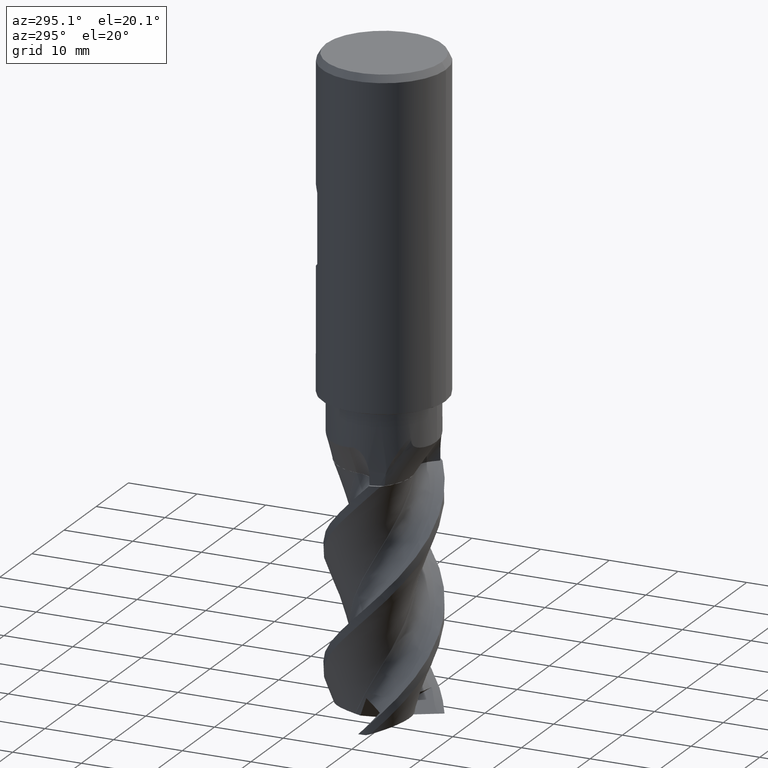
[diagram: clean part render]
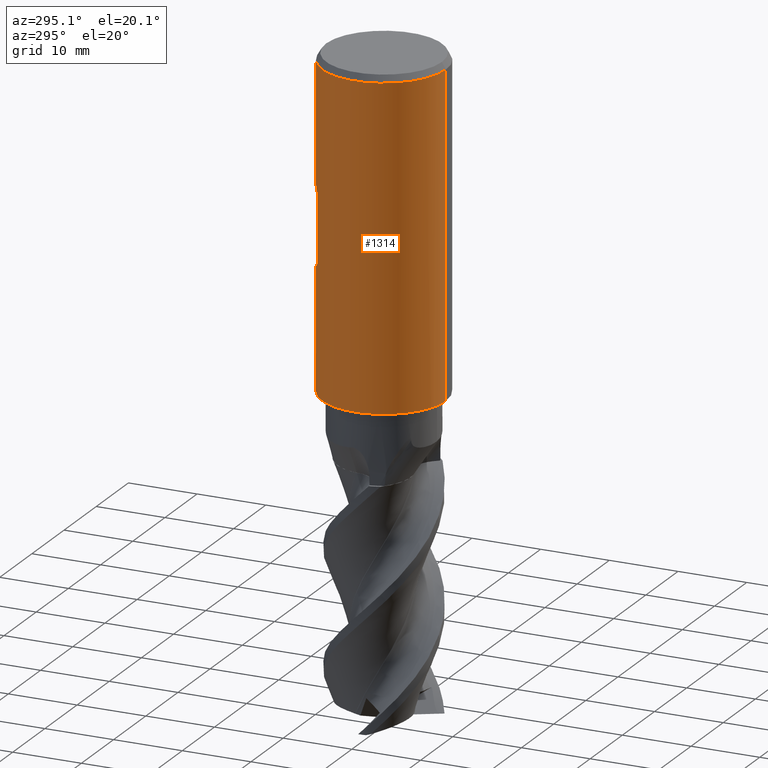
[diagram: same view with one face highlighted and labeled with its STEP entity id]
A machine part, auxiliary view. The second image highlights one B-rep face of the part: STEP entity #1314.
In plain terms, the highlighted cylindrical surface (partial cylindrical patch) has radius 9 mm, axis along (-0, -0, 1).
Its self-contained STEP definition (entity closure, byte-faithful):
#508=EDGE_CURVE('',#1026,#636,#1442,.T.);
#522=VERTEX_POINT('',#1458);
#598=EDGE_CURVE('',#756,#932,#1542,.T.);
#624=VERTEX_POINT('',#1571);
#636=VERTEX_POINT('',#1583);
#646=EDGE_CURVE('',#1152,#932,#1594,.T.);
#652=EDGE_CURVE('',#1072,#1014,#1600,.T.);
#706=VERTEX_POINT('',#1663);
#710=EDGE_CURVE('',#1216,#956,#1667,.T.);
#756=VERTEX_POINT('',#1717);
#778=EDGE_CURVE('',#1026,#1216,#1742,.T.);
#820=VERTEX_POINT('',#1785);
#852=EDGE_CURVE('',#930,#706,#1821,.T.);
#870=VERTEX_POINT('',#1840);
#884=EDGE_CURVE('',#1100,#870,#1855,.T.);
#900=EDGE_CURVE('',#756,#1014,#1871,.T.);
#908=VERTEX_POINT('',#1879);
#930=VERTEX_POINT('',#1903);
#932=VERTEX_POINT('',#1905);
#956=VERTEX_POINT('',#1930);
#960=EDGE_CURVE('',#706,#1380,#1935,.T.);
#1014=VERTEX_POINT('',#1995);
#1026=VERTEX_POINT('',#2009);
#1034=EDGE_CURVE('',#1146,#1072,#2017,.T.);
#1044=EDGE_CURVE('',#1380,#1100,#2028,.T.);
#1056=VERTEX_POINT('',#2040);
#1072=VERTEX_POINT('',#2056);
#1100=VERTEX_POINT('',#2085);
#1146=VERTEX_POINT('',#2136);
#1152=VERTEX_POINT('',#2142);
#1168=EDGE_CURVE('',#624,#1146,#2159,.T.);
#1216=VERTEX_POINT('',#2210);
#1254=EDGE_CURVE('',#1056,#908,#2253,.T.);
#1284=EDGE_CURVE('',#1152,#636,#2285,.T.);
#1314=ADVANCED_FACE('',(#2319,#2320),#2321,.T.);
#1332=EDGE_CURVE('',#820,#1056,#2341,.T.);
#1362=EDGE_CURVE('',#908,#820,#2374,.T.);
#1370=EDGE_CURVE('',#956,#522,#2383,.T.);
#1374=EDGE_CURVE('',#522,#930,#2387,.T.);
#1376=EDGE_CURVE('',#870,#624,#2389,.T.);
#1380=VERTEX_POINT('',#2393);
#1442=CIRCLE('',#2451,9.0);
#1458=CARTESIAN_POINT('',(-1.10214571844014E-015,9.0,-17.2));
#1542=B_SPLINE_CURVE_WITH_KNOTS('',3,(#3024,#3025,#3026,#3027,#3028,#3029,#3030,#3031),.UNSPECIFIED.,.F.,.F.,(4,2,2,4),(0.0,0.273563072568342,0.380967480785505,0.478814664205633),.UNSPECIFIED.);
#1571=CARTESIAN_POINT('',(-0.972752485096018,8.94727626726366,-30.7666603497188));
#1583=CARTESIAN_POINT('',(-2.87220340311306,-8.52938729400569,-47.48));
#1594=CIRCLE('',#3672,9.0);
#1600=LINE('',#3680,#3681);
#1663=CARTESIAN_POINT('',(-5.4,7.2,-29.0));
#1667=CIRCLE('',#4671,9.0);
#1717=CARTESIAN_POINT('',(-5.59669407703695,7.0481923503874,-47.48));
#1742=LINE('',#5560,#5561);
#1785=CARTESIAN_POINT('',(-2.67409065022992,8.59355800552675,-34.2242344279458));
#1821=LINE('',#5925,#5926);
#1840=CARTESIAN_POINT('',(-0.0299999583321919,8.99995,-31.5195952455543));
#1855=LINE('',#6039,#6040);
#1871=CIRCLE('',#6076,9.0);
#1879=CARTESIAN_POINT('',(-0.0299999583321114,8.99995,-32.9206537157906));
#1903=CARTESIAN_POINT('',(-5.4,7.2,-19.0));
#1905=CARTESIAN_POINT('',(-5.95056437376174,6.75209475894092,-47.48));
#1930=CARTESIAN_POINT('',(0.0,9.0,-1.0));
#1935=ELLIPSE('',#6575,12.7279220613579,9.0);
#1995=CARTESIAN_POINT('',(-1.10214571844014E-015,9.0,-47.48));
#2009=CARTESIAN_POINT('',(1.10214571844014E-015,-9.0,-47.48));
#2017=ELLIPSE('',#7197,12.7279220613579,9.0);
#2028=B_SPLINE_CURVE_WITH_KNOTS('',3,(#7226,#7227,#7228,#7229,#7230,#7231,#7232,#7233,#7234,#7235,#7236,#7237,#7238,#7239,#7240,#7241,#7242,#7243,#7244,#7245,#7246,#7247,#7248,#7249),.UNSPECIFIED.,.F.,.F.,(4,2,2,2,2,2,2,2,2,2,2,4),(6.72111535967371,7.16886729186492,7.61661922405613,8.06437115624733,8.51212308843854,8.95987502062975,9.40648566973643,9.8530963188431,10.2997069679498,10.7463176170565,11.1960107466702,11.6457038762839),.UNSPECIFIED.);
#2040=CARTESIAN_POINT('',(-0.0299999583321709,8.99995,-35.5425013611652));
#2056=CARTESIAN_POINT('',(-1.10214571844014E-015,9.0,-30.8));
#2085=CARTESIAN_POINT('',(-0.0299999583321239,8.99995,-32.4762670158147));
#2136=CARTESIAN_POINT('',(-0.982797064955306,8.94617850979485,-30.7461785097949));
#2142=CARTESIAN_POINT('',(-3.30556658769449,-8.37097542311037,-47.48));
#2159=B_SPLINE_CURVE_WITH_KNOTS('',3,(#8054,#8055,#8056,#8057,#8058,#8059,#8060,#8061,#8062,#8063,#8064,#8065,#8066,#8067,#8068,#8069,#8070,#8071,#8072,#8073,#8074,#8075,#8076,#8077,#8078,#8079,#8080),.UNSPECIFIED.,.F.,.F.,(4,2,3,2,2,2,2,2,2,2,2,2,4),(-1.085405744916,-0.542702872457999,0.0,0.542702872457997,1.08540574491599,1.62951320283213,2.17362066074827,2.71536265667879,3.25710465260932,3.79954438793423,4.34198412325914,4.88442385858405,5.42686359390896),.UNSPECIFIED.);
#2210=CARTESIAN_POINT('',(1.10214571844014E-015,-9.0,-1.0));
#2253=LINE('',#8932,#8933);
#2285=B_SPLINE_CURVE_WITH_KNOTS('',3,(#9051,#9052,#9053,#9054,#9055,#9056,#9057,#9058),.UNSPECIFIED.,.F.,.F.,(4,2,2,4),(0.0,0.273648571603157,0.381080653276081,0.478953568978043),.UNSPECIFIED.);
#2319=FACE_OUTER_BOUND('',#9222,.T.);
#2320=FACE_BOUND('',#9223,.T.);
#2321=CYLINDRICAL_SURFACE('',#9224,9.0);
#2341=B_SPLINE_CURVE_WITH_KNOTS('',3,(#9786,#9787,#9788,#9789,#9790,#9791,#9792,#9793,#9794,#9795,#9796,#9797,#9798,#9799,#9800,#9801),.UNSPECIFIED.,.F.,.F.,(4,2,2,2,2,2,2,4),(11.7740200023062,12.393951505771,13.013967552252,13.633983598733,14.253999645214,14.874015691695,15.4928840481819,16.1117524046687),.UNSPECIFIED.);
#2374=ELLIPSE('',#10337,10.0343558883857,9.0);
#2383=LINE('',#10349,#10350);
#2387=ELLIPSE('',#10355,12.7279220613579,9.0);
#2389=B_SPLINE_CURVE_WITH_KNOTS('',3,(#10358,#10359,#10360,#10361,#10362,#10363,#10364,#10365,#10366,#10367,#10368,#10369,#10370,#10371,#10372,#10373,#10374,#10375,#10376,#10377,#10378,#10379,#10380,#10381,#10382,#10383,#10384),.UNSPECIFIED.,.F.,.F.,(4,2,3,2,2,2,2,2,2,2,2,2,4),(-1.085405744916,-0.542702872457999,0.0,0.542702872457997,1.08540574491599,1.62951320283213,2.17362066074827,2.71536265667879,3.25710465260932,3.79954438793423,4.34198412325914,4.88442385858405,5.42686359390896),.UNSPECIFIED.);
#2393=CARTESIAN_POINT('',(-2.02979799746045,8.7681195298368,-30.5681195298368));
#2451=AXIS2_PLACEMENT_3D('',#10446,#10447,#10448);
#3024=CARTESIAN_POINT('',(-5.59669407703691,7.04819235038743,-47.48));
#3025=CARTESIAN_POINT('',(-5.66280986759142,6.99569238514816,-47.4455376893854));
#3026=CARTESIAN_POINT('',(-5.73685288017995,6.93518547355534,-47.4180056755605));
#3027=CARTESIAN_POINT('',(-5.8336652488943,6.85343898023005,-47.4193809766427));
#3028=CARTESIAN_POINT('',(-5.86071501051607,6.83031288234061,-47.4241825965036));
#3029=CARTESIAN_POINT('',(-5.90983351377393,6.78784398923294,-47.4451875062973));
#3030=CARTESIAN_POINT('',(-5.93132235903759,6.76905258482827,-47.459993828878));
#3031=CARTESIAN_POINT('',(-5.95056437376174,6.75209475894093,-47.48));
#3672=AXIS2_PLACEMENT_3D('',#10619,#10620,#10621);
#3680=CARTESIAN_POINT('',(-1.10214571844014E-015,9.0,-24.24));
#3681=VECTOR('',#10625,1.0);
#4671=AXIS2_PLACEMENT_3D('',#10727,#10728,#10729);
#5560=CARTESIAN_POINT('',(1.10214571844014E-015,-9.0,-24.24));
#5561=VECTOR('',#10817,1.0);
#5925=CARTESIAN_POINT('',(-5.4,7.2,-24.0));
#5926=VECTOR('',#10886,1.0);
#6039=CARTESIAN_POINT('',(-0.0299999583321114,8.99995,-32.5113557716623));
#6040=VECTOR('',#10932,1.0);
#6076=AXIS2_PLACEMENT_3D('',#10943,#10944,#10945);
#6575=AXIS2_PLACEMENT_3D('',#11019,#11020,#11021);
#7197=AXIS2_PLACEMENT_3D('',#11144,#11145,#11146);
#7226=CARTESIAN_POINT('',(-2.02573899998328,8.76905818796675,-29.6761327684681));
#7227=CARTESIAN_POINT('',(-2.05585758861474,8.76210049671451,-29.8292863196099));
#7228=CARTESIAN_POINT('',(-2.07020653574254,8.7586668448668,-29.9834494521882));
#7229=CARTESIAN_POINT('',(-2.07020653574254,8.7586668448668,-30.2819507403156));
#7230=CARTESIAN_POINT('',(-2.05585758861474,8.76210049671451,-30.4361138728939));
#7231=CARTESIAN_POINT('',(-1.99562041135181,8.776015879219,-30.7424209751776));
#7232=CARTESIAN_POINT('',(-1.94974727162203,8.78648509096056,-30.8945684809083));
#7233=CARTESIAN_POINT('',(-1.8286586346091,8.81248217441499,-31.1860895333502));
#7234=CARTESIAN_POINT('',(-1.75334716132797,8.82800085542403,-31.3257055064884));
#7235=CARTESIAN_POINT('',(-1.57948408609156,8.86075930113369,-31.5837739010011));
#7236=CARTESIAN_POINT('',(-1.48091949983175,8.87795943361991,-31.7022226038278));
#7237=CARTESIAN_POINT('',(-1.2712111113396,8.91040128827857,-31.9116168857159));
#7238=CARTESIAN_POINT('',(-1.15287103889247,8.92679820825818,-32.0098456755453));
#7239=CARTESIAN_POINT('',(-0.895034420080195,8.95632465188876,-32.183137952716));
#7240=CARTESIAN_POINT('',(-0.755541498545393,8.96941761352922,-32.2582130608226));
#7241=CARTESIAN_POINT('',(-0.464354476379575,8.98919741687783,-32.3788870471889));
#7242=CARTESIAN_POINT('',(-0.312412241771743,8.9958754356403,-32.4245842985495));
#7243=CARTESIAN_POINT('',(-0.00667433813825385,9.00129611309261,-32.4845577077242));
#7244=CARTESIAN_POINT('',(0.147124132522398,9.00002871278482,-32.4988204910877));
#7245=CARTESIAN_POINT('',(0.445730523630594,8.99020542722627,-32.4988204910877));
#7246=CARTESIAN_POINT('',(0.600297659886331,8.98127715240044,-32.4843636868261));
#7247=CARTESIAN_POINT('',(0.90708999517611,8.95549464347648,-32.4238646193837));
#7248=CARTESIAN_POINT('',(1.05931937675239,8.93865007325276,-32.3778394492554));
#7249=CARTESIAN_POINT('',(1.20504183583085,8.91896149637935,-32.3171936404792));
#8054=CARTESIAN_POINT('',(1.33036832267219,8.90113027238847,-29.1074250922449));
#8055=CARTESIAN_POINT('',(1.45749188786099,8.88213030732594,-29.2347190705811));
#8056=CARTESIAN_POINT('',(1.56790332138236,8.86268816792471,-29.3959688561976));
#8057=CARTESIAN_POINT('',(1.71456548275565,8.83548683826903,-29.7498311856967));
#8058=CARTESIAN_POINT('',(1.75079223667223,8.8280647111362,-29.9424794942448));
#8059=CARTESIAN_POINT('',(1.75079223667223,8.8280647111362,-30.1233804517308));
#8060=CARTESIAN_POINT('',(1.75079223667223,8.8280647111362,-30.3042814092168));
#8061=CARTESIAN_POINT('',(1.71456548275565,8.83548683826903,-30.4969297177649));
#8062=CARTESIAN_POINT('',(1.56790332138236,8.86268816792471,-30.850792047264));
#8063=CARTESIAN_POINT('',(1.45749188786099,8.88213030732594,-31.0120418328805));
#8064=CARTESIAN_POINT('',(1.20291574520041,8.92017941182611,-31.2669592428873));
#8065=CARTESIAN_POINT('',(1.04149337061168,8.94130655069399,-31.3776769707826));
#8066=CARTESIAN_POINT('',(0.687210131399165,8.97548959711479,-31.5247701109365));
#8067=CARTESIAN_POINT('',(0.494310444213559,8.98824520995452,-31.5611216454099));
#8068=CARTESIAN_POINT('',(0.132579651966037,9.00083507306786,-31.5611216454099));
#8069=CARTESIAN_POINT('',(-0.0599554084838443,9.00154270808028,-31.5250524131921));
#8070=CARTESIAN_POINT('',(-0.414040294972534,8.99221532277878,-31.3784327540332));
#8071=CARTESIAN_POINT('',(-0.575601847251623,8.98248579558085,-31.2678913710281));
#8072=CARTESIAN_POINT('',(-0.830863293176513,8.96248162807063,-31.0128482648791));
#8073=CARTESIAN_POINT('',(-0.941583007185728,8.95091544022499,-30.8512366752551));
#8074=CARTESIAN_POINT('',(-1.08850170901715,8.93423918714795,-30.4969190855959));
#8075=CARTESIAN_POINT('',(-1.124690150686,8.92944970672605,-30.3041936968391));
#8076=CARTESIAN_POINT('',(-1.124690150686,8.92944970672605,-29.9425672066225));
#8077=CARTESIAN_POINT('',(-1.08850170901715,8.93423918714795,-29.7498418178657));
#8078=CARTESIAN_POINT('',(-0.941583007185728,8.95091544022499,-29.3955242282065));
#8079=CARTESIAN_POINT('',(-0.830863293176513,8.96248162807063,-29.2339126385825));
#8080=CARTESIAN_POINT('',(-0.703150431785816,8.97249014879813,-29.1063090173374));
#8932=CARTESIAN_POINT('',(-0.0299999583321114,8.99995,-32.5113557716623));
#8933=VECTOR('',#11383,1.0);
#9051=CARTESIAN_POINT('',(-3.30564266308556,-8.37094538173488,-47.4800333912525));
#9052=CARTESIAN_POINT('',(-3.22709662544276,-8.40196280225407,-47.4455539334471));
#9053=CARTESIAN_POINT('',(-3.13764451392767,-8.43584438982659,-47.4180048519123));
#9054=CARTESIAN_POINT('',(-3.01840859578593,-8.47882576148057,-47.4193813179677));
#9055=CARTESIAN_POINT('',(-2.98484751722948,-8.49069139234544,-47.4241855520182));
#9056=CARTESIAN_POINT('',(-2.92349519671296,-8.51199943937715,-47.4452023144452));
#9057=CARTESIAN_POINT('',(-2.89647232007666,-8.5212150576443,-47.460016838941));
#9058=CARTESIAN_POINT('',(-2.87216284209744,-8.52940095249806,-47.4800333912525));
#9222=EDGE_LOOP('',(#11447,#11448,#11449,#11450,#11451,#11452,#11453,#11454,#11455,#11456,#11457,#11458,#11459,#11460,#11461,#11462,#11463));
#9223=EDGE_LOOP('',(#11464,#11465,#11466));
#9224=AXIS2_PLACEMENT_3D('',#11467,#11468,#11469);
#9786=CARTESIAN_POINT('',(-2.75801710243225,8.56699140087646,-34.1054896787227));
#9787=CARTESIAN_POINT('',(-2.63886488611276,8.60535070747131,-34.2823201867123));
#9788=CARTESIAN_POINT('',(-2.50399058736118,8.6459315593051,-34.4444994923181));
#9789=CARTESIAN_POINT('',(-2.21704939640103,8.72392110190447,-34.7315750503543));
#9790=CARTESIAN_POINT('',(-2.054862500917,8.76414625270379,-34.8665874707118));
#9791=CARTESIAN_POINT('',(-1.70105557084421,8.8396340071784,-35.1051893888033));
#9792=CARTESIAN_POINT('',(-1.50943400096102,8.87483172361297,-35.208797133909));
#9793=CARTESIAN_POINT('',(-1.10862905213282,8.93375457204859,-35.3757203182142));
#9794=CARTESIAN_POINT('',(-0.89909407932118,8.95748531044778,-35.439167436383));
#9795=CARTESIAN_POINT('',(-0.476478644662202,8.98987660380115,-35.5226250040961));
#9796=CARTESIAN_POINT('',(-0.263391934158759,8.99851865647943,-35.5426109895817));
#9797=CARTESIAN_POINT('',(0.149561331249368,9.00112141603858,-35.5426109895817));
#9798=CARTESIAN_POINT('',(0.36236142804058,8.99519002939681,-35.5226975878218));
#9799=CARTESIAN_POINT('',(0.784583080133951,8.9682316461963,-35.4394366659793));
#9800=CARTESIAN_POINT('',(0.994010392763709,8.94722330733776,-35.3761123034148));
#9801=CARTESIAN_POINT('',(1.1943649543029,8.92039754472484,-35.2927659152924));
#10337=AXIS2_PLACEMENT_3D('',#11532,#11533,#11534);
#10349=CARTESIAN_POINT('',(-1.10214571844014E-015,9.0,-24.24));
#10350=VECTOR('',#11544,1.0);
#10355=AXIS2_PLACEMENT_3D('',#11545,#11546,#11547);
#10358=CARTESIAN_POINT('',(1.33036832267219,8.90113027238847,-29.1074250922449));
#10359=CARTESIAN_POINT('',(1.45749188786099,8.88213030732594,-29.2347190705811));
#10360=CARTESIAN_POINT('',(1.56790332138236,8.86268816792471,-29.3959688561976));
#10361=CARTESIAN_POINT('',(1.71456548275565,8.83548683826903,-29.7498311856967));
#10362=CARTESIAN_POINT('',(1.75079223667223,8.8280647111362,-29.9424794942448));
#10363=CARTESIAN_POINT('',(1.75079223667223,8.8280647111362,-30.1233804517308));
#10364=CARTESIAN_POINT('',(1.75079223667223,8.8280647111362,-30.3042814092168));
#10365=CARTESIAN_POINT('',(1.71456548275565,8.83548683826903,-30.4969297177649));
#10366=CARTESIAN_POINT('',(1.56790332138236,8.86268816792471,-30.850792047264));
#10367=CARTESIAN_POINT('',(1.45749188786099,8.88213030732594,-31.0120418328805));
#10368=CARTESIAN_POINT('',(1.20291574520041,8.92017941182611,-31.2669592428873));
#10369=CARTESIAN_POINT('',(1.04149337061168,8.94130655069399,-31.3776769707826));
#10370=CARTESIAN_POINT('',(0.687210131399165,8.97548959711479,-31.5247701109365));
#10371=CARTESIAN_POINT('',(0.494310444213559,8.98824520995452,-31.5611216454099));
#10372=CARTESIAN_POINT('',(0.132579651966037,9.00083507306786,-31.5611216454099));
#10373=CARTESIAN_POINT('',(-0.0599554084838443,9.00154270808028,-31.5250524131921));
#10374=CARTESIAN_POINT('',(-0.414040294972534,8.99221532277878,-31.3784327540332));
#10375=CARTESIAN_POINT('',(-0.575601847251623,8.98248579558085,-31.2678913710281));
#10376=CARTESIAN_POINT('',(-0.830863293176513,8.96248162807063,-31.0128482648791));
#10377=CARTESIAN_POINT('',(-0.941583007185728,8.95091544022499,-30.8512366752551));
#10378=CARTESIAN_POINT('',(-1.08850170901715,8.93423918714795,-30.4969190855959));
#10379=CARTESIAN_POINT('',(-1.124690150686,8.92944970672605,-30.3041936968391));
#10380=CARTESIAN_POINT('',(-1.124690150686,8.92944970672605,-29.9425672066225));
#10381=CARTESIAN_POINT('',(-1.08850170901715,8.93423918714795,-29.7498418178657));
#10382=CARTESIAN_POINT('',(-0.941583007185728,8.95091544022499,-29.3955242282065));
#10383=CARTESIAN_POINT('',(-0.830863293176513,8.96248162807063,-29.2339126385825));
#10384=CARTESIAN_POINT('',(-0.703150431785816,8.97249014879813,-29.1063090173374));
#10446=CARTESIAN_POINT('',(0.0,0.0,-47.48));
#10447=DIRECTION('',(0.0,0.0,-1.0));
#10448=DIRECTION('',(0.0,1.0,0.0));
#10619=CARTESIAN_POINT('',(0.0,0.0,-47.48));
#10620=DIRECTION('',(0.0,0.0,-1.0));
#10621=DIRECTION('',(0.0,1.0,0.0));
#10625=DIRECTION('',(0.0,0.0,-1.0));
#10727=CARTESIAN_POINT('',(0.0,0.0,-1.0));
#10728=DIRECTION('',(0.0,0.0,-1.0));
#10729=DIRECTION('',(0.0,1.0,0.0));
#10817=DIRECTION('',(-0.0,-0.0,1.0));
#10886=DIRECTION('',(0.0,0.0,-1.0));
#10932=DIRECTION('',(-0.0,-0.0,1.0));
#10943=CARTESIAN_POINT('',(0.0,0.0,-47.48));
#10944=DIRECTION('',(0.0,0.0,-1.0));
#10945=DIRECTION('',(0.0,1.0,0.0));
#11019=CARTESIAN_POINT('',(0.0,0.0,-21.8));
#11020=DIRECTION('',(0.0,-0.707106781186548,-0.707106781186548));
#11021=DIRECTION('',(0.0,0.707106781186548,-0.707106781186548));
#11144=CARTESIAN_POINT('',(0.0,0.0,-21.8));
#11145=DIRECTION('',(0.0,-0.707106781186548,-0.707106781186548));
#11146=DIRECTION('',(0.0,0.707106781186548,-0.707106781186548));
#11383=DIRECTION('',(-0.0,-0.0,1.0));
#11447=ORIENTED_EDGE('',*,*,#1370,.T.);
#11448=ORIENTED_EDGE('',*,*,#1374,.T.);
#11449=ORIENTED_EDGE('',*,*,#852,.T.);
#11450=ORIENTED_EDGE('',*,*,#960,.T.);
#11451=ORIENTED_EDGE('',*,*,#1044,.T.);
#11452=ORIENTED_EDGE('',*,*,#884,.T.);
#11453=ORIENTED_EDGE('',*,*,#1376,.T.);
#11454=ORIENTED_EDGE('',*,*,#1168,.T.);
#11455=ORIENTED_EDGE('',*,*,#1034,.T.);
#11456=ORIENTED_EDGE('',*,*,#652,.T.);
#11457=ORIENTED_EDGE('',*,*,#900,.F.);
#11458=ORIENTED_EDGE('',*,*,#598,.T.);
#11459=ORIENTED_EDGE('',*,*,#646,.F.);
#11460=ORIENTED_EDGE('',*,*,#1284,.T.);
#11461=ORIENTED_EDGE('',*,*,#508,.F.);
#11462=ORIENTED_EDGE('',*,*,#778,.T.);
#11463=ORIENTED_EDGE('',*,*,#710,.T.);
#11464=ORIENTED_EDGE('',*,*,#1332,.T.);
#11465=ORIENTED_EDGE('',*,*,#1254,.T.);
#11466=ORIENTED_EDGE('',*,*,#1362,.T.);
#11467=CARTESIAN_POINT('',(0.0,0.0,-24.24));
#11468=DIRECTION('',(-0.0,-0.0,1.0));
#11469=DIRECTION('',(0.0,1.0,0.0));
#11532=CARTESIAN_POINT('',(0.0,0.0,-32.9058632370952));
#11533=DIRECTION('',(-0.442195774284071,0.0,0.896918556617774));
#11534=DIRECTION('',(0.896918556617774,-0.0,0.442195774284071));
#11544=DIRECTION('',(0.0,0.0,-1.0));
#11545=CARTESIAN_POINT('',(0.0,0.0,-26.2));
#11546=DIRECTION('',(0.0,-0.707106781186548,0.707106781186548));
#11547=DIRECTION('',(0.0,0.707106781186548,0.707106781186548));